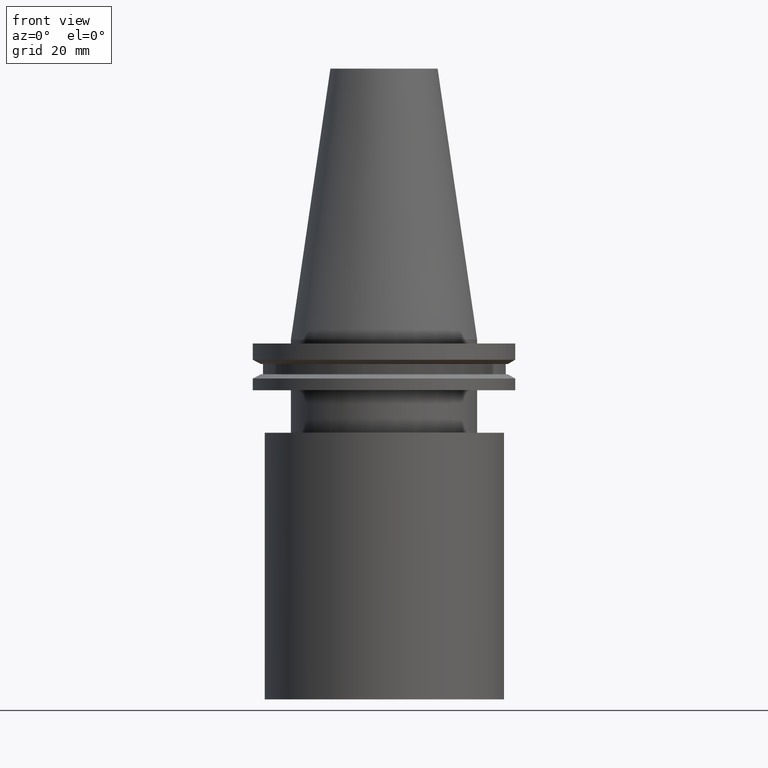
[diagram: clean part render]
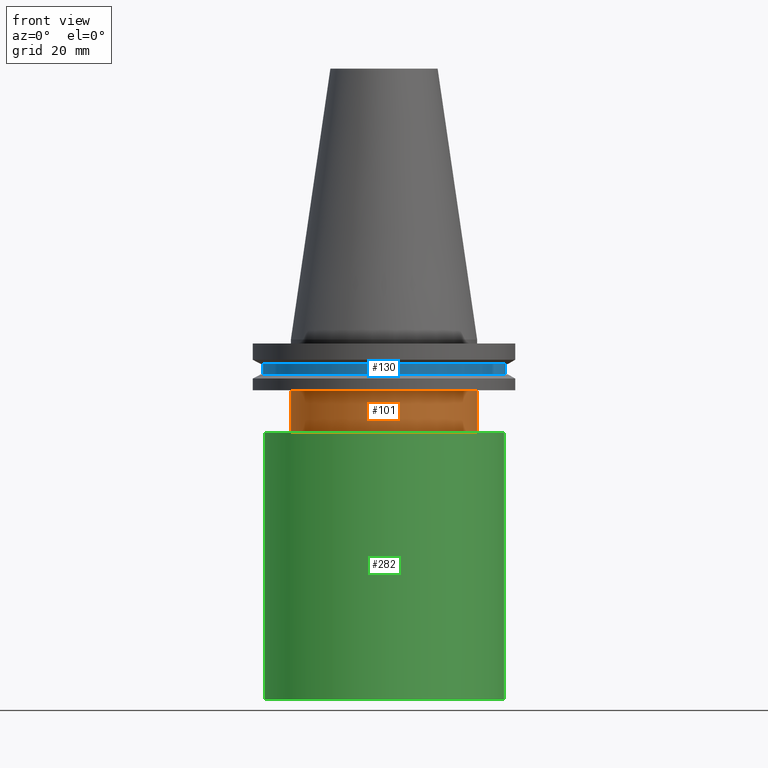
[diagram: same view with three faces highlighted in distinct colors, each labeled with its STEP entity id]
A machine part, front view with three faces highlighted in distinct colors.
Their STEP definitions:

[orange] entity #101 — the highlighted cylindrical surface (bore or boss wall) has radius 34.925 mm, axis along (-0, -0, 1).
#45 = DIRECTION ( 'NONE',  ( 1.000000000000000000, 0.000000000000000000, 0.000000000000000000 ) ) ;
#50 = CARTESIAN_POINT ( 'NONE',  ( 34.92499999999999716, 0.000000000000000000, -19.04999999999999716 ) ) ;
#75 = DIRECTION ( 'NONE',  ( 1.000000000000000000, 0.000000000000000000, 0.000000000000000000 ) ) ;
#96 = CIRCLE ( 'NONE', #393, 34.92499999999999716 ) ;
#99 = FACE_OUTER_BOUND ( 'NONE', #120, .T. ) ;
#100 = CARTESIAN_POINT ( 'NONE',  ( 0.000000000000000000, 0.000000000000000000, 101.5999999999999943 ) ) ;
#101 = ADVANCED_FACE ( 'NONE', ( #378, #99 ), #280, .T. ) ;
#104 = DIRECTION ( 'NONE',  ( -0.000000000000000000, -0.000000000000000000, 1.000000000000000000 ) ) ;
#120 = EDGE_LOOP ( 'NONE', ( #238 ) ) ;
#135 = VERTEX_POINT ( 'NONE', #256 ) ;
#157 = ORIENTED_EDGE ( 'NONE', *, *, #243, .F. ) ;
#159 = EDGE_CURVE ( 'NONE', #135, #135, #274, .T. ) ;
#167 = DIRECTION ( 'NONE',  ( -0.000000000000000000, -0.000000000000000000, 1.000000000000000000 ) ) ;
#185 = EDGE_LOOP ( 'NONE', ( #157 ) ) ;
#187 = AXIS2_PLACEMENT_3D ( 'NONE', #192, #167, #45 ) ;
#192 = CARTESIAN_POINT ( 'NONE',  ( 0.000000000000000000, 0.000000000000000000, -35.00000000000000000 ) ) ;
#194 = DIRECTION ( 'NONE',  ( -0.000000000000000000, -0.000000000000000000, 1.000000000000000000 ) ) ;
#221 = DIRECTION ( 'NONE',  ( 1.000000000000000000, 0.000000000000000000, 0.000000000000000000 ) ) ;
#238 = ORIENTED_EDGE ( 'NONE', *, *, #159, .T. ) ;
#243 = EDGE_CURVE ( 'NONE', #322, #322, #96, .T. ) ;
#256 = CARTESIAN_POINT ( 'NONE',  ( 34.92499999999999716, 0.000000000000000000, -35.00000000000000000 ) ) ;
#274 = CIRCLE ( 'NONE', #187, 34.92499999999999716 ) ;
#280 = CYLINDRICAL_SURFACE ( 'NONE', #283, 34.92499999999999716 ) ;
#283 = AXIS2_PLACEMENT_3D ( 'NONE', #100, #194, #221 ) ;
#322 = VERTEX_POINT ( 'NONE', #50 ) ;
#378 = FACE_OUTER_BOUND ( 'NONE', #185, .T. ) ;
#383 = CARTESIAN_POINT ( 'NONE',  ( 0.000000000000000000, 0.000000000000000000, -19.04999999999999716 ) ) ;
#393 = AXIS2_PLACEMENT_3D ( 'NONE', #383, #104, #75 ) ;

[blue] entity #130 — the highlighted cylindrical surface (bore or boss wall) has radius 45.645 mm, axis along (-0, -0, 1).
#9 = DIRECTION ( 'NONE',  ( -0.000000000000000000, -0.000000000000000000, 1.000000000000000000 ) ) ;
#60 = ORIENTED_EDGE ( 'NONE', *, *, #361, .T. ) ;
#71 = DIRECTION ( 'NONE',  ( 1.000000000000000000, 0.000000000000000000, 0.000000000000000000 ) ) ;
#76 = AXIS2_PLACEMENT_3D ( 'NONE', #131, #9, #166 ) ;
#93 = ORIENTED_EDGE ( 'NONE', *, *, #175, .F. ) ;
#103 = DIRECTION ( 'NONE',  ( -0.000000000000000000, -0.000000000000000000, 1.000000000000000000 ) ) ;
#113 = DIRECTION ( 'NONE',  ( 1.000000000000000000, 0.000000000000000000, 0.000000000000000000 ) ) ;
#127 = CIRCLE ( 'NONE', #317, 45.64500000000000313 ) ;
#129 = CYLINDRICAL_SURFACE ( 'NONE', #380, 45.64500000000000313 ) ;
#130 = ADVANCED_FACE ( 'NONE', ( #346, #224 ), #129, .T. ) ;
#131 = CARTESIAN_POINT ( 'NONE',  ( 0.000000000000000000, 0.000000000000000000, -9.204999999999991189 ) ) ;
#136 = EDGE_LOOP ( 'NONE', ( #93 ) ) ;
#166 = DIRECTION ( 'NONE',  ( 1.000000000000000000, 0.000000000000000000, 0.000000000000000000 ) ) ;
#175 = EDGE_CURVE ( 'NONE', #385, #385, #391, .T. ) ;
#214 = VERTEX_POINT ( 'NONE', #241 ) ;
#224 = FACE_OUTER_BOUND ( 'NONE', #340, .T. ) ;
#227 = CARTESIAN_POINT ( 'NONE',  ( 45.64500000000000313, 0.000000000000000000, -9.204999999999991189 ) ) ;
#241 = CARTESIAN_POINT ( 'NONE',  ( 45.64500000000000313, 0.000000000000000000, -13.05499999999999794 ) ) ;
#289 = DIRECTION ( 'NONE',  ( -0.000000000000000000, -0.000000000000000000, 1.000000000000000000 ) ) ;
#291 = CARTESIAN_POINT ( 'NONE',  ( 0.000000000000000000, 0.000000000000000000, -13.05499999999999794 ) ) ;
#317 = AXIS2_PLACEMENT_3D ( 'NONE', #291, #289, #113 ) ;
#340 = EDGE_LOOP ( 'NONE', ( #60 ) ) ;
#345 = CARTESIAN_POINT ( 'NONE',  ( 0.000000000000000000, 0.000000000000000000, 101.5999999999999943 ) ) ;
#346 = FACE_OUTER_BOUND ( 'NONE', #136, .T. ) ;
#361 = EDGE_CURVE ( 'NONE', #214, #214, #127, .T. ) ;
#380 = AXIS2_PLACEMENT_3D ( 'NONE', #345, #103, #71 ) ;
#385 = VERTEX_POINT ( 'NONE', #227 ) ;
#391 = CIRCLE ( 'NONE', #76, 45.64500000000000313 ) ;

[green] entity #282 — the highlighted cylindrical surface (bore or boss wall) has radius 45 mm, axis along (-0, -0, 1).
#13 = DIRECTION ( 'NONE',  ( 1.000000000000000000, 0.000000000000000000, 0.000000000000000000 ) ) ;
#17 = DIRECTION ( 'NONE',  ( -0.000000000000000000, -0.000000000000000000, 1.000000000000000000 ) ) ;
#21 = EDGE_LOOP ( 'NONE', ( #184 ) ) ;
#29 = CARTESIAN_POINT ( 'NONE',  ( 45.00000000000000000, 0.000000000000000000, -135.0000000000000000 ) ) ;
#47 = CIRCLE ( 'NONE', #299, 45.00000000000000000 ) ;
#52 = CYLINDRICAL_SURFACE ( 'NONE', #251, 45.00000000000000000 ) ;
#78 = VERTEX_POINT ( 'NONE', #197 ) ;
#87 = DIRECTION ( 'NONE',  ( 1.000000000000000000, 0.000000000000000000, 0.000000000000000000 ) ) ;
#90 = EDGE_LOOP ( 'NONE', ( #277 ) ) ;
#117 = CARTESIAN_POINT ( 'NONE',  ( 0.000000000000000000, 0.000000000000000000, -135.0000000000000000 ) ) ;
#148 = CIRCLE ( 'NONE', #266, 45.00000000000000000 ) ;
#174 = DIRECTION ( 'NONE',  ( 1.000000000000000000, 0.000000000000000000, 0.000000000000000000 ) ) ;
#183 = VERTEX_POINT ( 'NONE', #29 ) ;
#184 = ORIENTED_EDGE ( 'NONE', *, *, #313, .T. ) ;
#193 = CARTESIAN_POINT ( 'NONE',  ( 0.000000000000000000, 0.000000000000000000, -35.00000000000000000 ) ) ;
#197 = CARTESIAN_POINT ( 'NONE',  ( 45.00000000000000000, 0.000000000000000000, -35.00000000000000000 ) ) ;
#203 = FACE_OUTER_BOUND ( 'NONE', #90, .T. ) ;
#207 = CARTESIAN_POINT ( 'NONE',  ( 0.000000000000000000, 0.000000000000000000, 0.000000000000000000 ) ) ;
#209 = FACE_OUTER_BOUND ( 'NONE', #21, .T. ) ;
#230 = EDGE_CURVE ( 'NONE', #78, #78, #148, .T. ) ;
#251 = AXIS2_PLACEMENT_3D ( 'NONE', #207, #17, #174 ) ;
#266 = AXIS2_PLACEMENT_3D ( 'NONE', #193, #316, #13 ) ;
#277 = ORIENTED_EDGE ( 'NONE', *, *, #230, .F. ) ;
#282 = ADVANCED_FACE ( 'NONE', ( #203, #209 ), #52, .T. ) ;
#299 = AXIS2_PLACEMENT_3D ( 'NONE', #117, #328, #87 ) ;
#313 = EDGE_CURVE ( 'NONE', #183, #183, #47, .T. ) ;
#316 = DIRECTION ( 'NONE',  ( -0.000000000000000000, -0.000000000000000000, 1.000000000000000000 ) ) ;
#328 = DIRECTION ( 'NONE',  ( -0.000000000000000000, -0.000000000000000000, 1.000000000000000000 ) ) ;